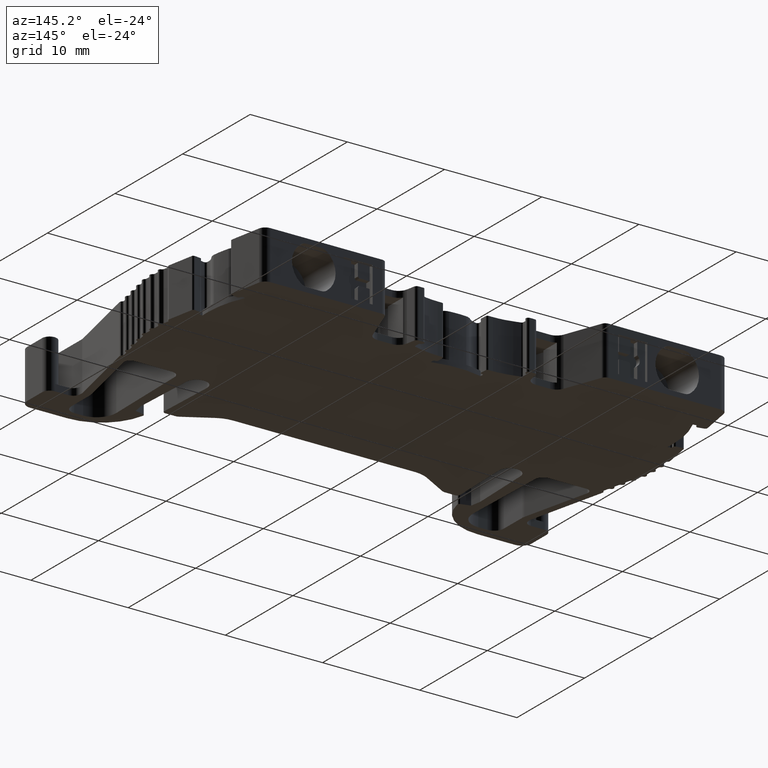
[diagram: clean part render]
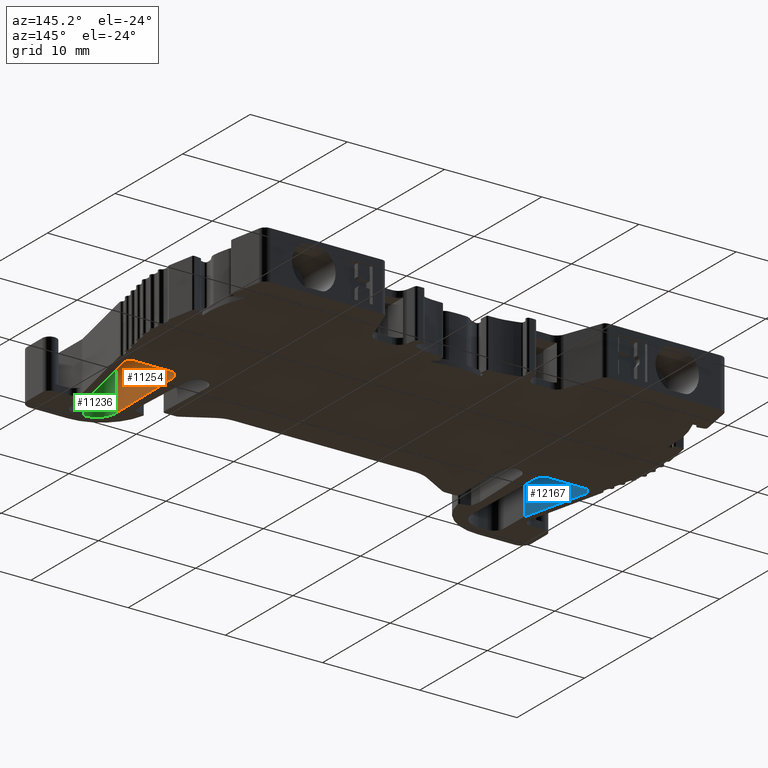
[diagram: same view with three faces highlighted in distinct colors, each labeled with its STEP entity id]
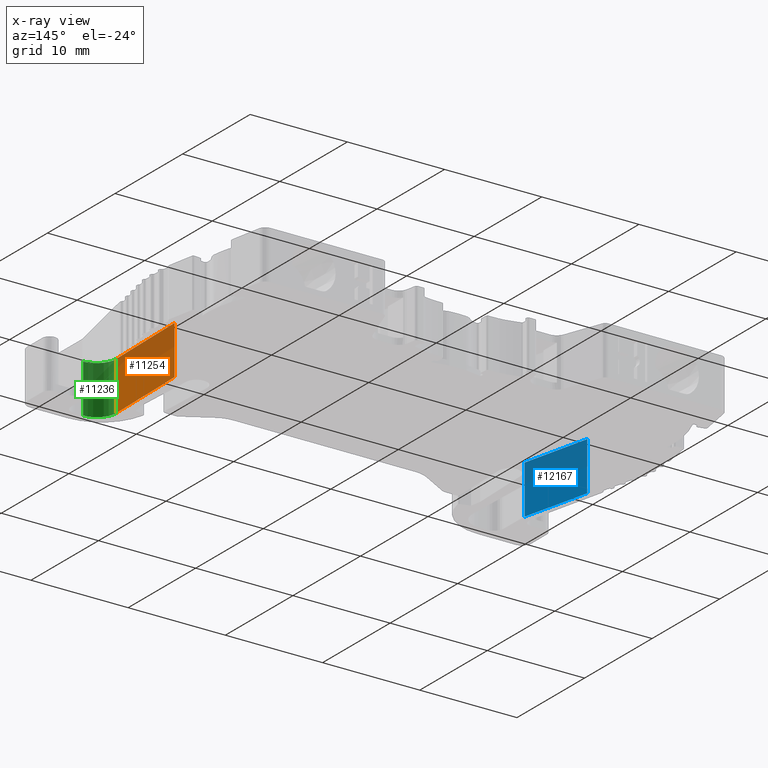
[diagram: x-ray of the same camera — body ghosted, the three highlighted faces saturated]
A machine part, auxiliary view with three faces highlighted in distinct colors.
The next image is the same camera in x-ray (body ghosted, the three faces saturated) — at least one of them is partly hidden behind the body in this view.
Their STEP definitions:

[orange] entity #11254 — the highlighted planar face has unit normal (-0.9997, 0.0241, 0).
#587 = EDGE_LOOP ( 'NONE', ( #919, #908, #931, #945 ) ) ;
#908 = ORIENTED_EDGE ( 'NONE', *, *, #11717, .T. ) ;
#919 = ORIENTED_EDGE ( 'NONE', *, *, #11715, .F. ) ;
#931 = ORIENTED_EDGE ( 'NONE', *, *, #11682, .T. ) ;
#945 = ORIENTED_EDGE ( 'NONE', *, *, #9088, .T. ) ;
#2425 = CARTESIAN_POINT ( 'NONE',  ( 1952.705360284165000, 490.9360756447330200, 2.500000000000000000 ) ) ;
#2438 = LINE ( 'NONE', #2425, #12280 ) ;
#2488 = DIRECTION ( 'NONE',  ( -0.02405163140963774100, -0.9997107176711346200, -0.0000000000000000000 ) ) ;
#4838 = CARTESIAN_POINT ( 'NONE',  ( 1952.919526107975100, 499.8379195893440400, -50.50000000000000000 ) ) ;
#4856 = DIRECTION ( 'NONE',  ( 0.0000000000000000000, 0.0000000000000000000, 1.000000000000000000 ) ) ;
#4868 = LINE ( 'NONE', #4838, #6407 ) ;
#4922 = CARTESIAN_POINT ( 'NONE',  ( 1952.705360284165000, 490.9360756447330200, -2.500000000000002200 ) ) ;
#4948 = LINE ( 'NONE', #4922, #6027 ) ;
#4964 = LINE ( 'NONE', #4966, #6014 ) ;
#4966 = CARTESIAN_POINT ( 'NONE',  ( 1952.705360284165000, 490.9360756447330200, -50.50000000000000000 ) ) ;
#4980 = DIRECTION ( 'NONE',  ( 0.0000000000000000000, 0.0000000000000000000, 1.000000000000000000 ) ) ;
#5002 = DIRECTION ( 'NONE',  ( 0.02405163140963774400, 0.9997107176711346200, 0.0000000000000000000 ) ) ;
#6014 = VECTOR ( 'NONE', #4980, 1000.000000000000000 ) ;
#6027 = VECTOR ( 'NONE', #5002, 1000.000000000000000 ) ;
#6407 = VECTOR ( 'NONE', #4856, 1000.000000000000000 ) ;
#6426 = CARTESIAN_POINT ( 'NONE',  ( 1952.705360284165000, 490.9360756447330200, -2.500000000000002200 ) ) ;
#6462 = CARTESIAN_POINT ( 'NONE',  ( 1952.919526107974900, 499.8379195893440400, -2.500000000000002200 ) ) ;
#6520 = CARTESIAN_POINT ( 'NONE',  ( 1952.705360284165000, 490.9360756447330200, 2.500000000000000000 ) ) ;
#6773 = CARTESIAN_POINT ( 'NONE',  ( 1952.919526107975100, 499.8379195893440400, 2.500000000000000000 ) ) ;
#7318 = CARTESIAN_POINT ( 'NONE',  ( 1952.705360284165000, 490.9360756447330200, -50.50000000000000000 ) ) ;
#7330 = FACE_OUTER_BOUND ( 'NONE', #587, .T. ) ;
#7343 = DIRECTION ( 'NONE',  ( -0.9997107176711346200, 0.02405163140963774400, 0.0000000000000000000 ) ) ;
#7358 = PLANE ( 'NONE',  #9328 ) ;
#7362 = DIRECTION ( 'NONE',  ( -0.02405163140963774400, -0.9997107176711346200, 0.0000000000000000000 ) ) ;
#9088 = EDGE_CURVE ( 'NONE', #10684, #10150, #2438, .T. ) ;
#9328 = AXIS2_PLACEMENT_3D ( 'NONE', #7318, #7343, #7362 ) ;
#10043 = VERTEX_POINT ( 'NONE', #6462 ) ;
#10062 = VERTEX_POINT ( 'NONE', #6426 ) ;
#10150 = VERTEX_POINT ( 'NONE', #6520 ) ;
#10684 = VERTEX_POINT ( 'NONE', #6773 ) ;
#11254 = ADVANCED_FACE ( 'NONE', ( #7330 ), #7358, .F. ) ;
#11682 = EDGE_CURVE ( 'NONE', #10043, #10684, #4868, .T. ) ;
#11715 = EDGE_CURVE ( 'NONE', #10062, #10150, #4964, .T. ) ;
#11717 = EDGE_CURVE ( 'NONE', #10062, #10043, #4948, .T. ) ;
#12280 = VECTOR ( 'NONE', #2488, 1000.000000000000000 ) ;

[blue] entity #12167 — the highlighted planar face has unit normal (-0.9763, -0.2164, 0).
#678 = EDGE_LOOP ( 'NONE', ( #1001, #938, #956, #921 ) ) ;
#921 = ORIENTED_EDGE ( 'NONE', *, *, #9134, .T. ) ;
#938 = ORIENTED_EDGE ( 'NONE', *, *, #11726, .T. ) ;
#956 = ORIENTED_EDGE ( 'NONE', *, *, #11696, .T. ) ;
#1001 = ORIENTED_EDGE ( 'NONE', *, *, #11712, .F. ) ;
#1579 = DIRECTION ( 'NONE',  ( 0.2164396139383143200, -0.9762960071198864000, 0.0000000000000000000 ) ) ;
#1584 = CARTESIAN_POINT ( 'NONE',  ( 1910.526651073975000, 499.9376119342840100, 2.500000000000000000 ) ) ;
#1592 = LINE ( 'NONE', #1584, #12349 ) ;
#3341 = DIRECTION ( 'NONE',  ( 0.2164396139383143200, -0.9762960071198864000, 0.0000000000000000000 ) ) ;
#3350 = PLANE ( 'NONE',  #3641 ) ;
#3351 = DIRECTION ( 'NONE',  ( -0.9762960071198865100, -0.2164396139383143500, 0.0000000000000000000 ) ) ;
#3360 = CARTESIAN_POINT ( 'NONE',  ( 1910.526651073975000, 499.9376119342840100, -50.50000000000000000 ) ) ;
#3369 = FACE_OUTER_BOUND ( 'NONE', #678, .T. ) ;
#3641 = AXIS2_PLACEMENT_3D ( 'NONE', #3360, #3351, #3341 ) ;
#4904 = LINE ( 'NONE', #4910, #11678 ) ;
#4910 = CARTESIAN_POINT ( 'NONE',  ( 1910.526651073975000, 499.9376119342840100, -50.50000000000000000 ) ) ;
#4911 = DIRECTION ( 'NONE',  ( 0.0000000000000000000, 0.0000000000000000000, 1.000000000000000000 ) ) ;
#4971 = LINE ( 'NONE', #4992, #6043 ) ;
#4992 = CARTESIAN_POINT ( 'NONE',  ( 1912.084304003645000, 492.9114936186749700, -50.50000000000000000 ) ) ;
#4993 = DIRECTION ( 'NONE',  ( 0.0000000000000000000, 0.0000000000000000000, 1.000000000000000000 ) ) ;
#5011 = DIRECTION ( 'NONE',  ( -0.2164396139383143200, 0.9762960071198864000, 0.0000000000000000000 ) ) ;
#5013 = LINE ( 'NONE', #5047, #6019 ) ;
#5047 = CARTESIAN_POINT ( 'NONE',  ( 1910.526651073975000, 499.9376119342840100, -2.500000000000002200 ) ) ;
#6019 = VECTOR ( 'NONE', #5011, 1000.000000000000100 ) ;
#6043 = VECTOR ( 'NONE', #4993, 1000.000000000000000 ) ;
#6456 = CARTESIAN_POINT ( 'NONE',  ( 1912.084304003645000, 492.9114936186749700, -2.500000000000002200 ) ) ;
#6477 = CARTESIAN_POINT ( 'NONE',  ( 1910.526651073974300, 499.9376119342837800, -2.500000000000002200 ) ) ;
#6482 = CARTESIAN_POINT ( 'NONE',  ( 1910.526651073975000, 499.9376119342840100, 2.500000000000000000 ) ) ;
#6746 = CARTESIAN_POINT ( 'NONE',  ( 1912.084304003645000, 492.9114936186749700, 2.500000000000000000 ) ) ;
#9134 = EDGE_CURVE ( 'NONE', #10138, #10653, #1592, .T. ) ;
#10085 = VERTEX_POINT ( 'NONE', #6456 ) ;
#10109 = VERTEX_POINT ( 'NONE', #6477 ) ;
#10138 = VERTEX_POINT ( 'NONE', #6482 ) ;
#10653 = VERTEX_POINT ( 'NONE', #6746 ) ;
#11678 = VECTOR ( 'NONE', #4911, 1000.000000000000000 ) ;
#11696 = EDGE_CURVE ( 'NONE', #10109, #10138, #4904, .T. ) ;
#11712 = EDGE_CURVE ( 'NONE', #10085, #10653, #4971, .T. ) ;
#11726 = EDGE_CURVE ( 'NONE', #10085, #10109, #5013, .T. ) ;
#12167 = ADVANCED_FACE ( 'NONE', ( #3369 ), #3350, .F. ) ;
#12349 = VECTOR ( 'NONE', #1579, 1000.000000000000100 ) ;

[green] entity #11236 — the highlighted cylindrical surface (edge-blend (fillet) strip) has radius 2 mm, axis along (0, 0, 1).
#633 = EDGE_LOOP ( 'NONE', ( #924, #909, #918, #948 ) ) ;
#909 = ORIENTED_EDGE ( 'NONE', *, *, #11686, .T. ) ;
#918 = ORIENTED_EDGE ( 'NONE', *, *, #11715, .T. ) ;
#924 = ORIENTED_EDGE ( 'NONE', *, *, #11692, .F. ) ;
#948 = ORIENTED_EDGE ( 'NONE', *, *, #9102, .T. ) ;
#1465 = VECTOR ( 'NONE', #4880, 1000.000000000000000 ) ;
#2516 = CARTESIAN_POINT ( 'NONE',  ( 1954.704781719514800, 490.8879723819220000, 2.500000000000000000 ) ) ;
#2523 = DIRECTION ( 'NONE',  ( 0.0000000000000000000, 0.0000000000000000000, 1.000000000000000000 ) ) ;
#2552 = DIRECTION ( 'NONE',  ( 1.000000000000000000, 0.0000000000000000000, 0.0000000000000000000 ) ) ;
#4880 = DIRECTION ( 'NONE',  ( 0.0000000000000000000, 0.0000000000000000000, 1.000000000000000000 ) ) ;
#4882 = CARTESIAN_POINT ( 'NONE',  ( 1954.704781719514800, 490.8879723819220000, -2.500000000000002200 ) ) ;
#4895 = DIRECTION ( 'NONE',  ( 1.000000000000000000, 0.0000000000000000000, 0.0000000000000000000 ) ) ;
#4899 = CARTESIAN_POINT ( 'NONE',  ( 1954.702149268990100, 488.8879741143630300, -50.50000000000000000 ) ) ;
#4901 = DIRECTION ( 'NONE',  ( -0.0000000000000000000, -0.0000000000000000000, -1.000000000000000000 ) ) ;
#4913 = LINE ( 'NONE', #4899, #1465 ) ;
#4964 = LINE ( 'NONE', #4966, #6014 ) ;
#4966 = CARTESIAN_POINT ( 'NONE',  ( 1952.705360284165000, 490.9360756447330200, -50.50000000000000000 ) ) ;
#4980 = DIRECTION ( 'NONE',  ( 0.0000000000000000000, 0.0000000000000000000, 1.000000000000000000 ) ) ;
#6014 = VECTOR ( 'NONE', #4980, 1000.000000000000000 ) ;
#6426 = CARTESIAN_POINT ( 'NONE',  ( 1952.705360284165000, 490.9360756447330200, -2.500000000000002200 ) ) ;
#6446 = CARTESIAN_POINT ( 'NONE',  ( 1954.702149268990100, 488.8879741143630300, -2.500000000000002200 ) ) ;
#6478 = CARTESIAN_POINT ( 'NONE',  ( 1954.702149268990100, 488.8879741143630300, 2.500000000000000000 ) ) ;
#6520 = CARTESIAN_POINT ( 'NONE',  ( 1952.705360284165000, 490.9360756447330200, 2.500000000000000000 ) ) ;
#7233 = CYLINDRICAL_SURFACE ( 'NONE', #9364, 2.000000000008217400 ) ;
#7234 = FACE_OUTER_BOUND ( 'NONE', #633, .T. ) ;
#7235 = CARTESIAN_POINT ( 'NONE',  ( 1954.704781719514800, 490.8879723819220000, -50.50000000000000000 ) ) ;
#7236 = DIRECTION ( 'NONE',  ( 0.0000000000000000000, 0.0000000000000000000, 1.000000000000000000 ) ) ;
#7272 = DIRECTION ( 'NONE',  ( 1.000000000000000000, 0.0000000000000000000, 0.0000000000000000000 ) ) ;
#9102 = EDGE_CURVE ( 'NONE', #10150, #10114, #12310, .T. ) ;
#9364 = AXIS2_PLACEMENT_3D ( 'NONE', #7235, #7236, #7272 ) ;
#9418 = AXIS2_PLACEMENT_3D ( 'NONE', #4882, #4901, #4895 ) ;
#9421 = CIRCLE ( 'NONE', #9418, 2.000000000008217400 ) ;
#10062 = VERTEX_POINT ( 'NONE', #6426 ) ;
#10077 = VERTEX_POINT ( 'NONE', #6446 ) ;
#10114 = VERTEX_POINT ( 'NONE', #6478 ) ;
#10150 = VERTEX_POINT ( 'NONE', #6520 ) ;
#11236 = ADVANCED_FACE ( 'NONE', ( #7234 ), #7233, .F. ) ;
#11686 = EDGE_CURVE ( 'NONE', #10077, #10062, #9421, .T. ) ;
#11692 = EDGE_CURVE ( 'NONE', #10077, #10114, #4913, .T. ) ;
#11715 = EDGE_CURVE ( 'NONE', #10062, #10150, #4964, .T. ) ;
#12307 = AXIS2_PLACEMENT_3D ( 'NONE', #2516, #2523, #2552 ) ;
#12310 = CIRCLE ( 'NONE', #12307, 2.000000000008217400 ) ;